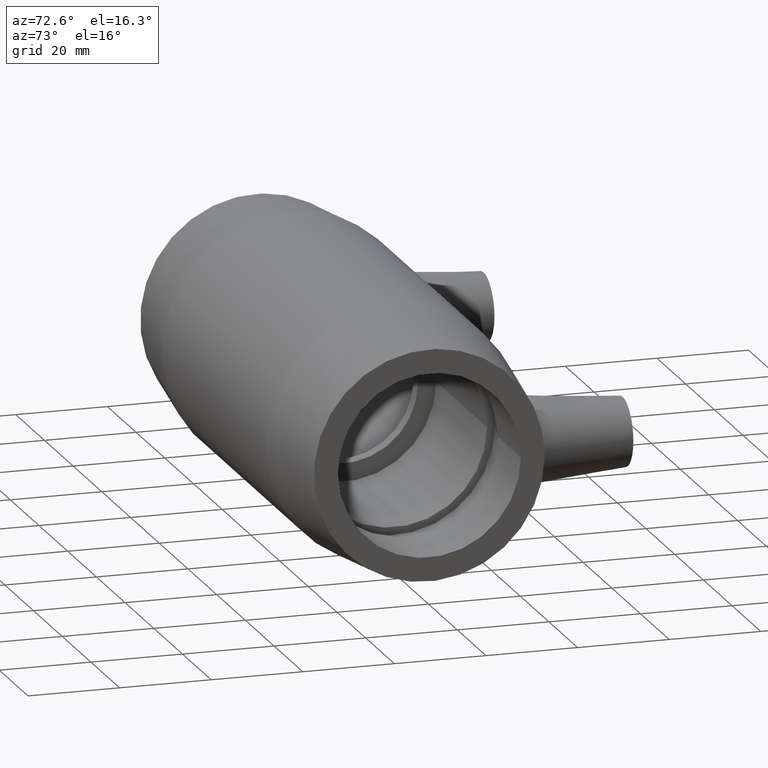
[diagram: clean part render]
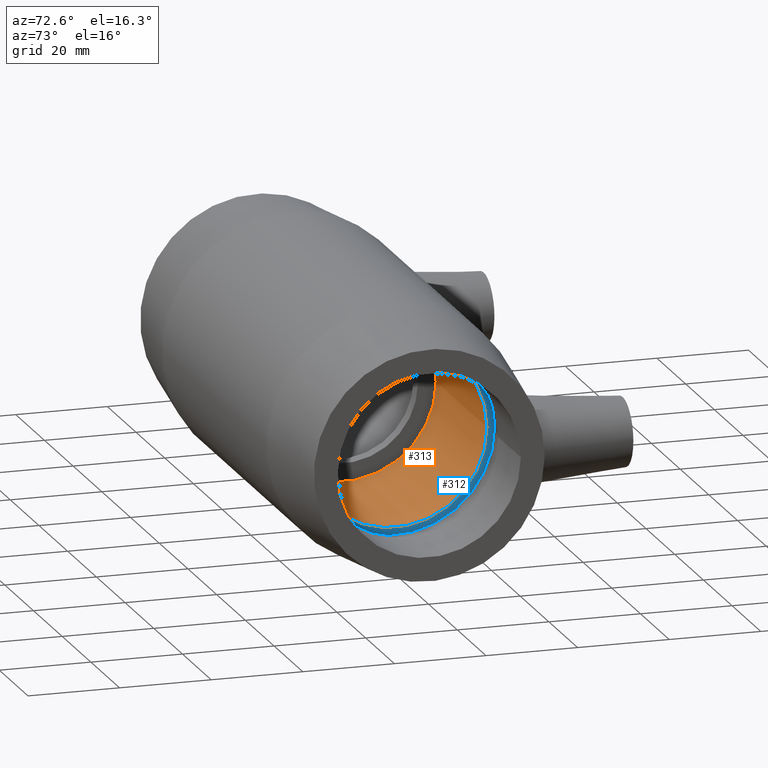
[diagram: same view with the hole feature highlighted: cylindrical wall and planar end face, labeled with their STEP entity ids]
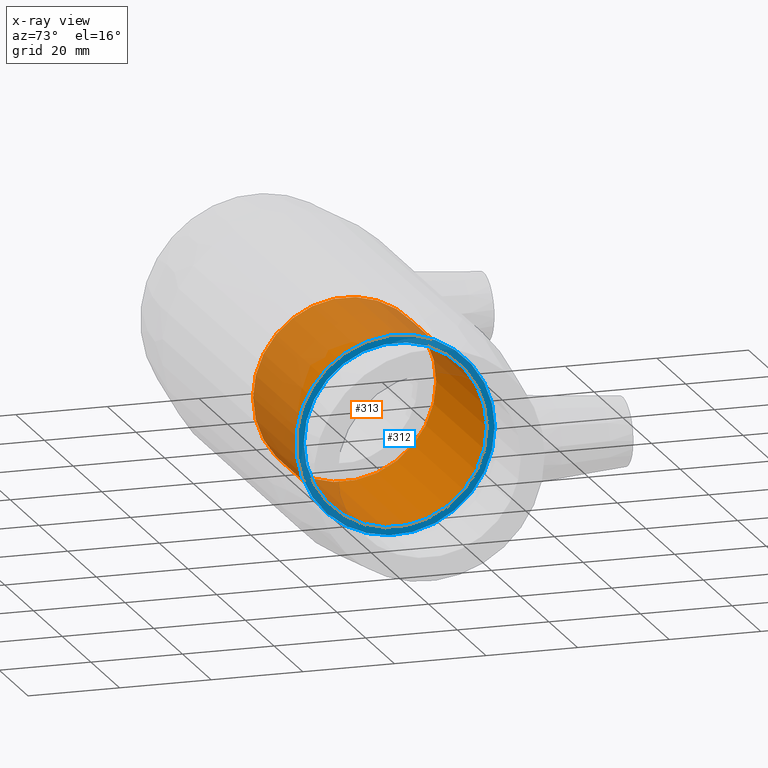
[diagram: x-ray of the same camera — body ghosted, the hole faces saturated]
A machine part, auxiliary view. The highlighted faces form one hole feature of diameter 40 mm: the cylindrical wall (entity #313, orange) and its adjacent planar end face (entity #312, blue) — they share a circular edge in the B-rep.
The next image is the same camera in x-ray (body ghosted, the hole faces saturated) — the bore reads through the body.
Wall:
#40=FACE_BOUND('',#125,.T.);
#57=CYLINDRICAL_SURFACE('',#360,20.);
#79=FACE_OUTER_BOUND('',#124,.T.);
#124=EDGE_LOOP('',(#262));
#125=EDGE_LOOP('',(#263));
#161=CIRCLE('',#359,20.);
#162=CIRCLE('',#361,20.);
#189=VERTEX_POINT('',#610);
#190=VERTEX_POINT('',#613);
#217=EDGE_CURVE('',#189,#189,#161,.T.);
#218=EDGE_CURVE('',#190,#190,#162,.T.);
#262=ORIENTED_EDGE('',*,*,#218,.F.);
#263=ORIENTED_EDGE('',*,*,#217,.T.);
#313=ADVANCED_FACE('',(#79,#40),#57,.F.);
#359=AXIS2_PLACEMENT_3D('',#611,#449,#450);
#360=AXIS2_PLACEMENT_3D('',#612,#451,#452);
#361=AXIS2_PLACEMENT_3D('',#614,#453,#454);
#449=DIRECTION('center_axis',(1.,0.,0.));
#450=DIRECTION('ref_axis',(0.,0.,-1.));
#451=DIRECTION('center_axis',(1.,0.,0.));
#452=DIRECTION('ref_axis',(0.,1.,0.));
#453=DIRECTION('center_axis',(1.,0.,0.));
#454=DIRECTION('ref_axis',(0.,0.,-1.));
#610=CARTESIAN_POINT('',(36.9,20.,0.));
#611=CARTESIAN_POINT('Origin',(36.9,0.,0.));
#612=CARTESIAN_POINT('Origin',(19.2,0.,0.));
#613=CARTESIAN_POINT('',(1.5,20.,0.));
#614=CARTESIAN_POINT('Origin',(1.5,0.,0.));
End face:
#39=FACE_BOUND('',#123,.T.);
#78=FACE_OUTER_BOUND('',#122,.T.);
#122=EDGE_LOOP('',(#260));
#123=EDGE_LOOP('',(#261));
#160=CIRCLE('',#357,21.6721116184708);
#161=CIRCLE('',#359,20.);
#188=VERTEX_POINT('',#607);
#189=VERTEX_POINT('',#610);
#216=EDGE_CURVE('',#188,#188,#160,.T.);
#217=EDGE_CURVE('',#189,#189,#161,.T.);
#260=ORIENTED_EDGE('',*,*,#216,.T.);
#261=ORIENTED_EDGE('',*,*,#217,.F.);
#290=PLANE('',#358);
#312=ADVANCED_FACE('',(#78,#39),#290,.T.);
#357=AXIS2_PLACEMENT_3D('',#608,#445,#446);
#358=AXIS2_PLACEMENT_3D('',#609,#447,#448);
#359=AXIS2_PLACEMENT_3D('',#611,#449,#450);
#445=DIRECTION('center_axis',(1.,0.,0.));
#446=DIRECTION('ref_axis',(0.,0.,-1.));
#447=DIRECTION('center_axis',(1.,0.,0.));
#448=DIRECTION('ref_axis',(0.,0.,-1.));
#449=DIRECTION('center_axis',(1.,0.,0.));
#450=DIRECTION('ref_axis',(0.,0.,-1.));
#607=CARTESIAN_POINT('',(36.9,21.6721116184708,0.));
#608=CARTESIAN_POINT('Origin',(36.9,0.,0.));
#609=CARTESIAN_POINT('Origin',(36.9,20.,0.));
#610=CARTESIAN_POINT('',(36.9,20.,0.));
#611=CARTESIAN_POINT('Origin',(36.9,0.,0.));